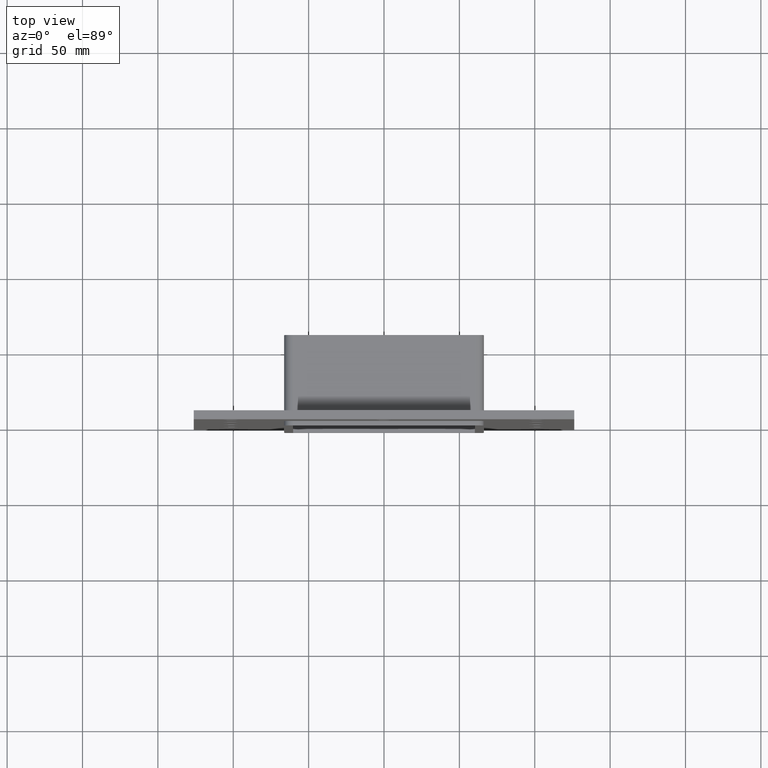
[diagram: clean part render]
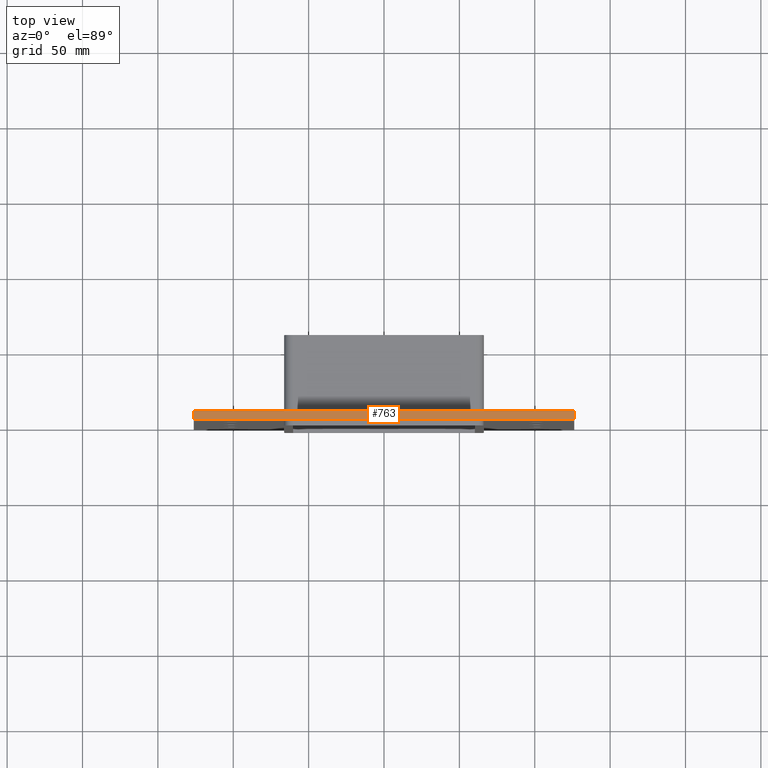
[diagram: same view with one face highlighted and labeled with its STEP entity id]
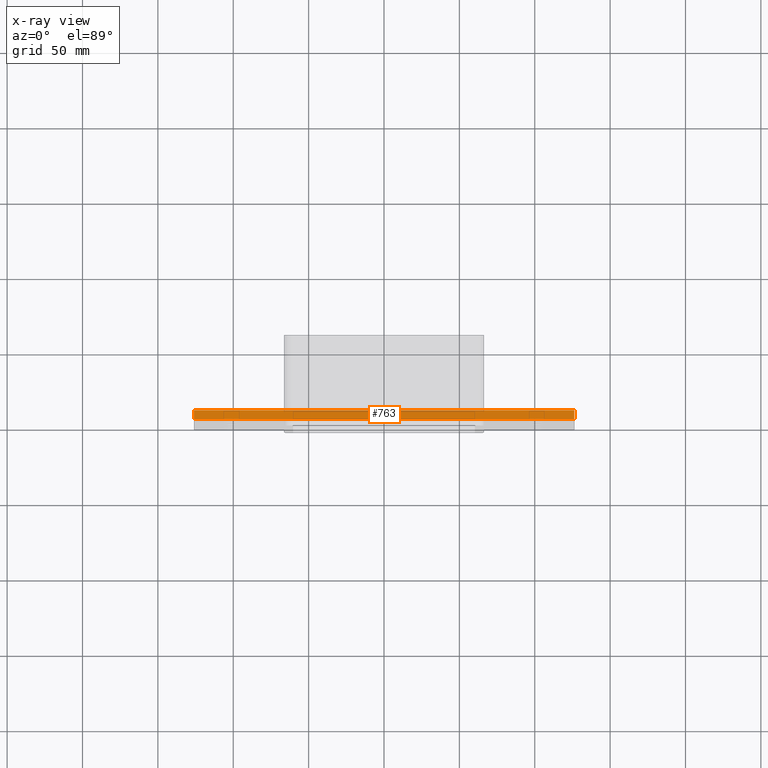
[diagram: x-ray of the same camera — body ghosted, the highlighted face saturated]
A machine part, top view. The second image highlights one B-rep face of the part: STEP entity #763.
The next image is the same camera in x-ray: the body ghosted, the highlighted face saturated — about 0% of this face is hidden behind the body in this view.
In plain terms, the highlighted planar face has unit normal (0, 0, 1).
Its self-contained STEP definition (entity closure, byte-faithful):
#409=CARTESIAN_POINT('',(-126.24999999999997,6.000000000000001,205.0));
#410=VERTEX_POINT('',#409);
#411=CARTESIAN_POINT('',(126.24999999999997,6.000000000000001,205.0));
#412=VERTEX_POINT('',#411);
#413=CARTESIAN_POINT('',(-126.24999999999997,6.000000000000001,205.0));
#414=DIRECTION('',(1.0,0.0,0.0));
#415=VECTOR('',#414,252.49999999999994);
#416=LINE('',#413,#415);
#417=EDGE_CURVE('',#410,#412,#416,.T.);
#555=CARTESIAN_POINT('',(-126.24999999999997,0.0,205.0));
#556=VERTEX_POINT('',#555);
#557=CARTESIAN_POINT('',(126.24999999999999,0.0,205.0));
#558=VERTEX_POINT('',#557);
#559=CARTESIAN_POINT('',(-126.24999999999997,0.0,205.0));
#560=DIRECTION('',(1.0,0.0,0.0));
#561=VECTOR('',#560,252.49999999999994);
#562=LINE('',#559,#561);
#563=EDGE_CURVE('',#556,#558,#562,.T.);
#702=CARTESIAN_POINT('',(-126.24999999999997,0.0,205.0));
#703=DIRECTION('',(0.0,1.0,0.0));
#704=VECTOR('',#703,6.000000000000001);
#705=LINE('',#702,#704);
#706=EDGE_CURVE('',#556,#410,#705,.T.);
#743=CARTESIAN_POINT('',(126.24999999999999,0.0,205.0));
#744=DIRECTION('',(0.0,1.0,0.0));
#745=VECTOR('',#744,6.000000000000001);
#746=LINE('',#743,#745);
#747=EDGE_CURVE('',#558,#412,#746,.T.);
#752=CARTESIAN_POINT('',(-126.24999999999997,0.0,205.0));
#753=DIRECTION('',(0.0,0.0,1.0));
#754=DIRECTION('',(1.0,0.0,0.0));
#755=AXIS2_PLACEMENT_3D('',#752,#753,#754);
#756=PLANE('',#755);
#757=ORIENTED_EDGE('',*,*,#563,.T.);
#758=ORIENTED_EDGE('',*,*,#747,.T.);
#759=ORIENTED_EDGE('',*,*,#417,.F.);
#760=ORIENTED_EDGE('',*,*,#706,.F.);
#761=EDGE_LOOP('',(#757,#758,#759,#760));
#762=FACE_OUTER_BOUND('',#761,.T.);
#763=ADVANCED_FACE('',(#762),#756,.T.);